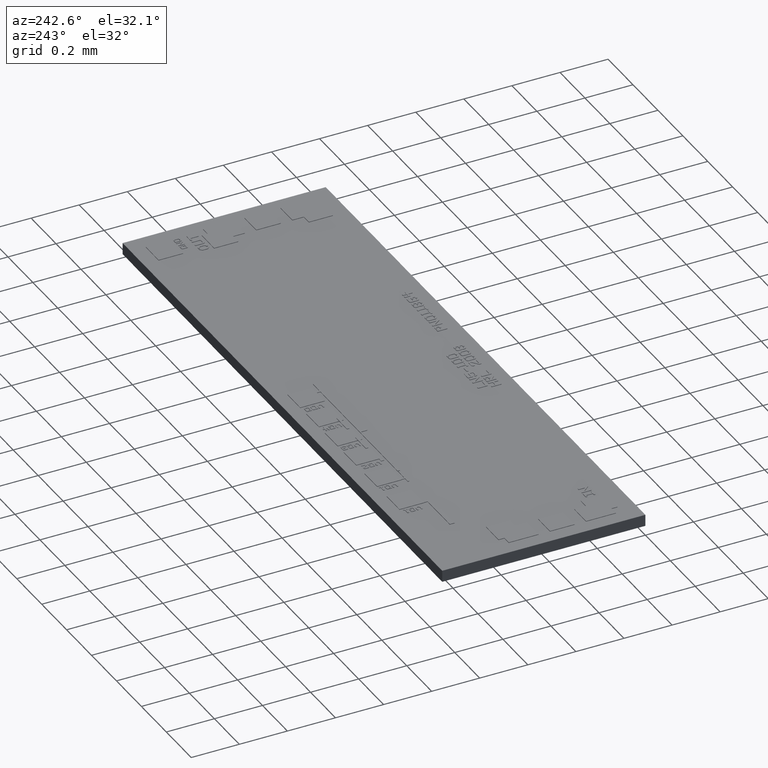
[diagram: clean part render]
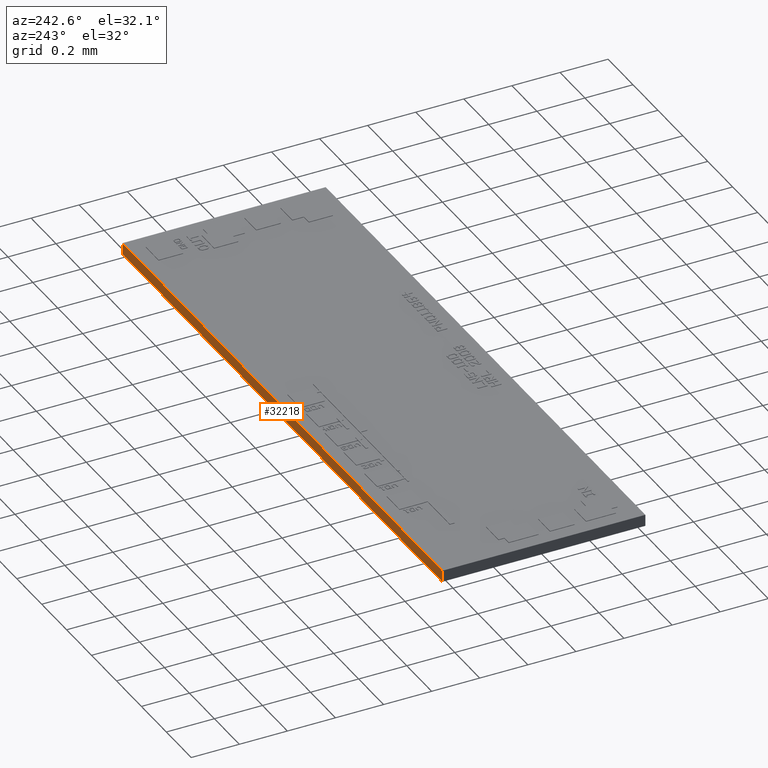
[diagram: same view with one face highlighted and labeled with its STEP entity id]
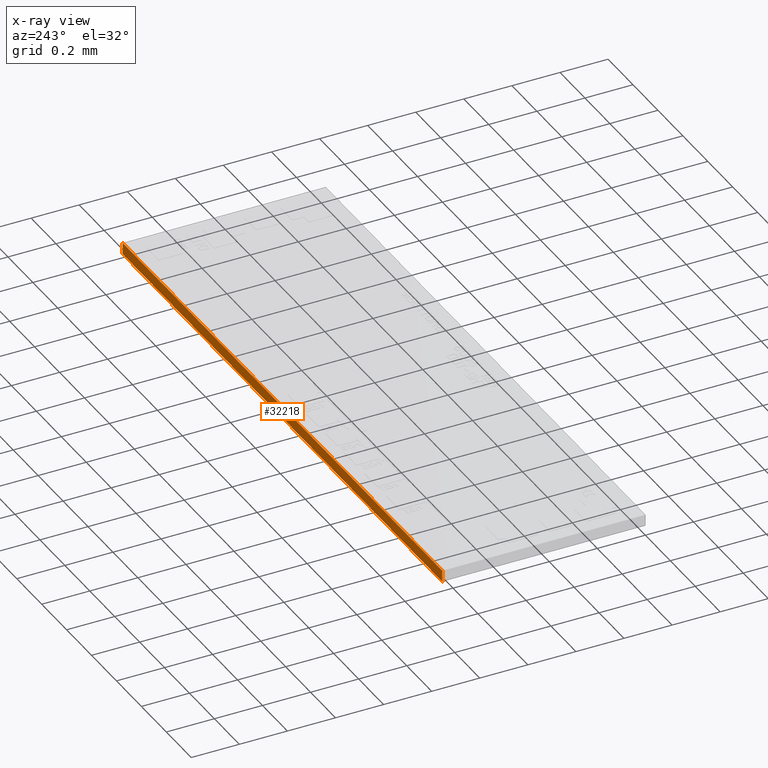
[diagram: x-ray of the same camera — body ghosted, the highlighted face saturated]
A machine part, auxiliary view. The second image highlights one B-rep face of the part: STEP entity #32218.
The next image is the same camera in x-ray: the body ghosted, the highlighted face saturated — about 0% of this face is hidden behind the body in this view.
In plain terms, the highlighted planar face has unit normal (0, 1, 0).
Its self-contained STEP definition (entity closure, byte-faithful):
#29507=CARTESIAN_POINT('',(0.100984251968504,0.033267716535433,0.001889763779528));
#29508=VERTEX_POINT('',#29507);
#29515=CARTESIAN_POINT('',(1.298470E-016,0.033267716535433,0.001889763779528));
#29516=VERTEX_POINT('',#29515);
#29517=CARTESIAN_POINT('',(1.249001E-016,0.033267716535433,0.001889763779528));
#29518=DIRECTION('',(1.0,0.0,0.0));
#29519=VECTOR('',#29518,0.100984251968504);
#29520=LINE('',#29517,#29519);
#29521=EDGE_CURVE('',#29516,#29508,#29520,.T.);
#30643=CARTESIAN_POINT('',(1.298470E-016,0.033267716535433,0.0));
#30644=VERTEX_POINT('',#30643);
#30645=CARTESIAN_POINT('',(1.298470E-016,0.033267716535433,0.0));
#30646=DIRECTION('',(0.0,0.0,1.0));
#30647=VECTOR('',#30646,0.001889763779528);
#30648=LINE('',#30645,#30647);
#30649=EDGE_CURVE('',#30644,#29516,#30648,.T.);
#32195=CARTESIAN_POINT('',(1.298470E-016,0.033267716535433,0.0));
#32196=DIRECTION('',(0.0,1.0,0.0));
#32197=DIRECTION('',(0.0,0.0,1.0));
#32198=AXIS2_PLACEMENT_3D('',#32195,#32196,#32197);
#32199=PLANE('',#32198);
#32200=ORIENTED_EDGE('',*,*,#29521,.T.);
#32201=CARTESIAN_POINT('',(0.100984251968504,0.033267716535433,0.0));
#32202=VERTEX_POINT('',#32201);
#32203=CARTESIAN_POINT('',(0.100984251968504,0.033267716535433,0.0));
#32204=DIRECTION('',(0.0,0.0,1.0));
#32205=VECTOR('',#32204,0.001889763779528);
#32206=LINE('',#32203,#32205);
#32207=EDGE_CURVE('',#32202,#29508,#32206,.T.);
#32208=ORIENTED_EDGE('',*,*,#32207,.F.);
#32209=CARTESIAN_POINT('',(0.100984251968504,0.033267716535433,0.0));
#32210=DIRECTION('',(-1.0,0.0,0.0));
#32211=VECTOR('',#32210,0.100984251968504);
#32212=LINE('',#32209,#32211);
#32213=EDGE_CURVE('',#32202,#30644,#32212,.T.);
#32214=ORIENTED_EDGE('',*,*,#32213,.T.);
#32215=ORIENTED_EDGE('',*,*,#30649,.T.);
#32216=EDGE_LOOP('',(#32200,#32208,#32214,#32215));
#32217=FACE_OUTER_BOUND('',#32216,.T.);
#32218=ADVANCED_FACE('',(#32217),#32199,.T.);